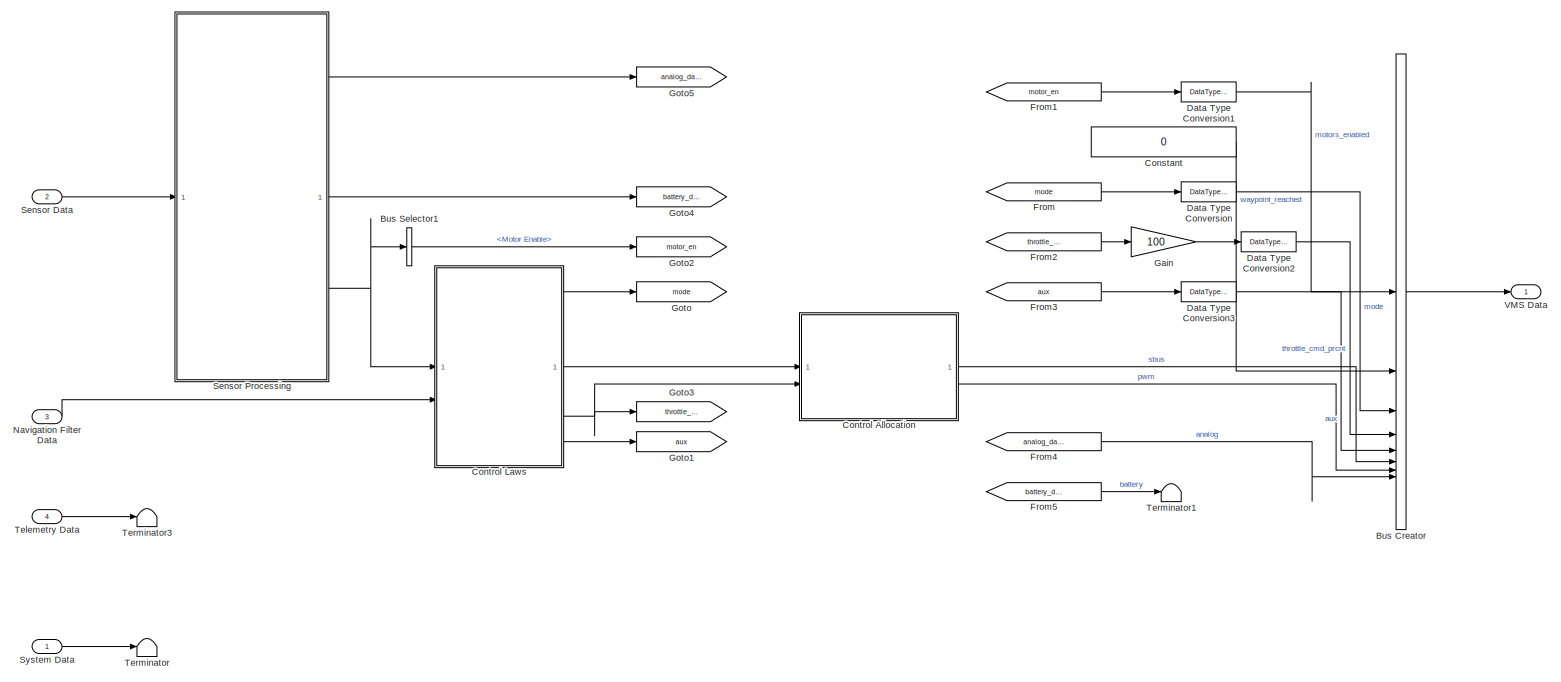
[diagram: root canvas - part 1/1, most of the canvas]
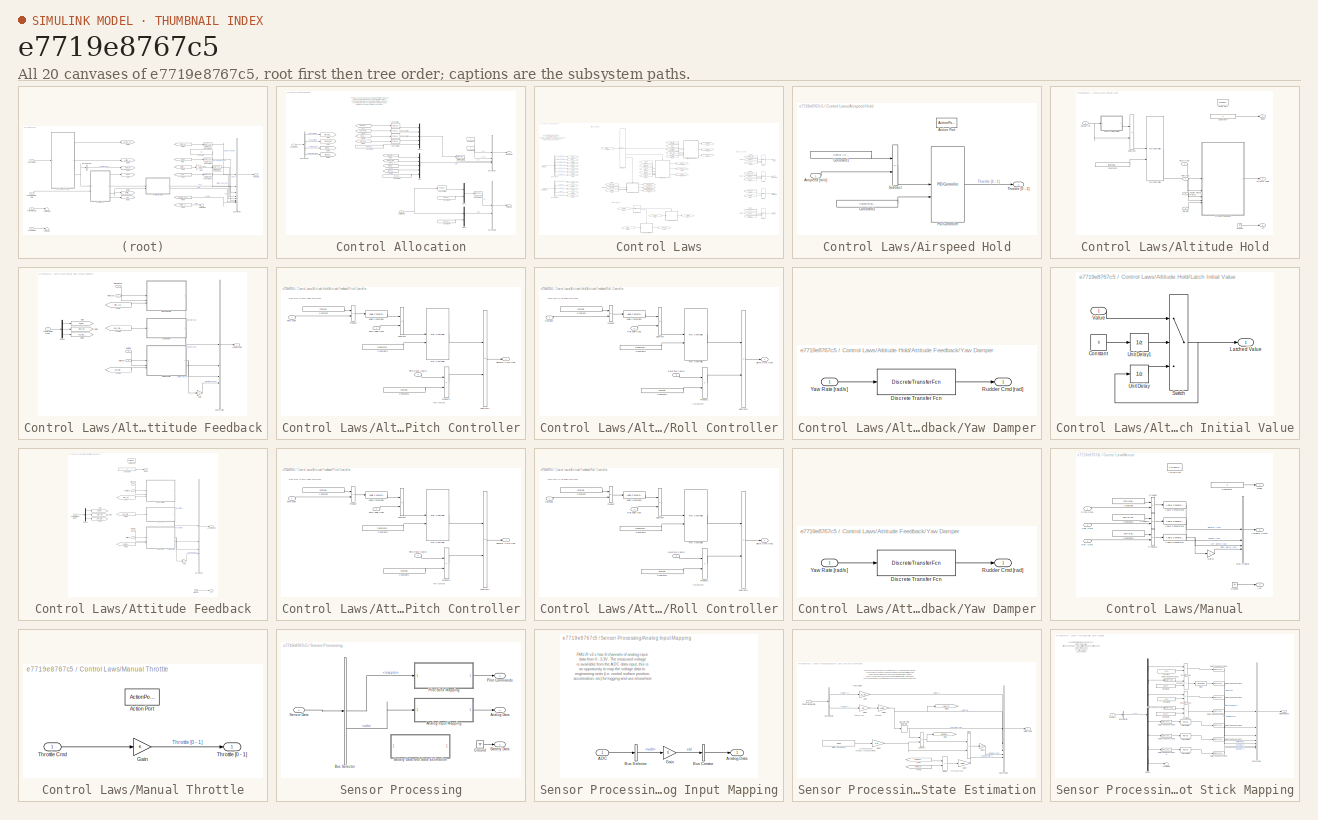
[diagram: thumbnail index - all 20 canvases of the model, root first then tree order]
MODEL slx_e7719e8767c5
KIND model
CONFIG AbsTol = auto
CONFIG EnableMultiTasking = off
CONFIG FixedStep = 1/100
CONFIG MaxStep = auto
CONFIG MinStep = auto
CONFIG RelTol = 1e-3
CONFIG SampleTimeConstraint = Unconstrained
CONFIG SolverName = FixedStepAuto
CONFIG StartTime = 0.0
CONFIG StopTime = 10.0
BLOCK [BusCreator] Bus Creator
  DisplayOption = bar
  InheritFromInputs = on
  Inputs = 8
BLOCK [BusSelector] Bus Selector1
  OutputSignals = Motor Enable
BLOCK [Constant] Constant
  OutDataTypeStr = boolean
  Value = 0
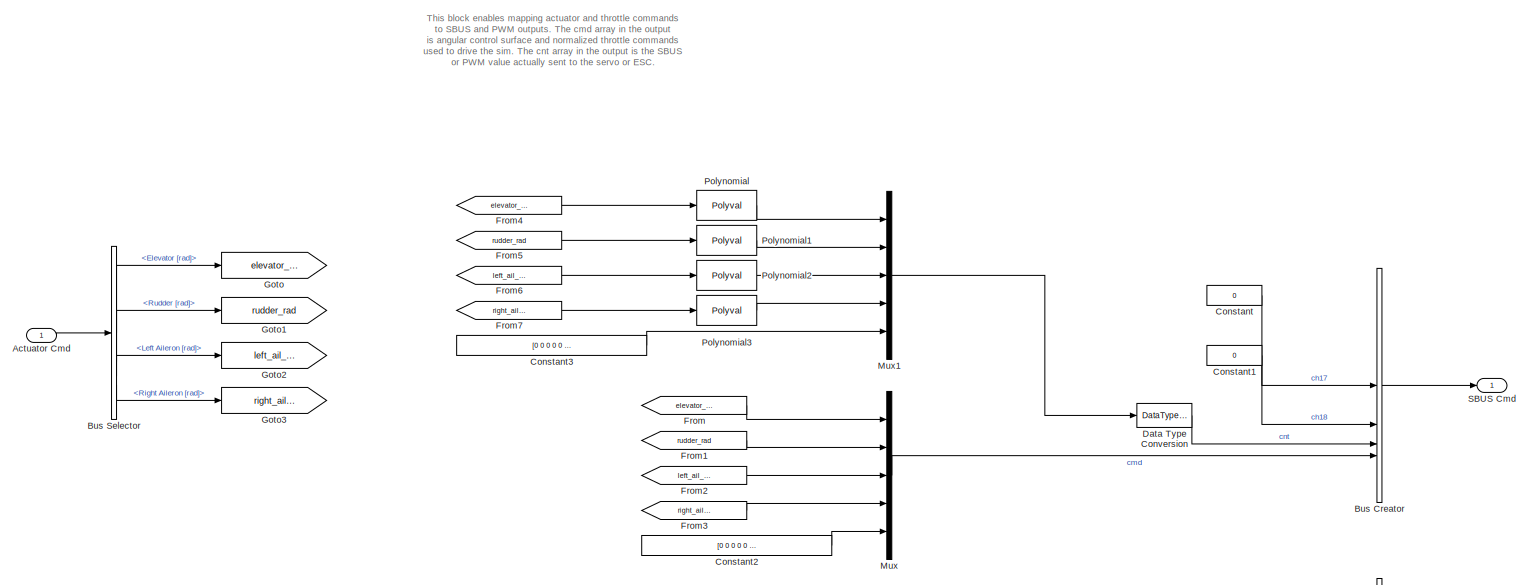
[diagram: Control Allocation - part 1/2, full width, top band]
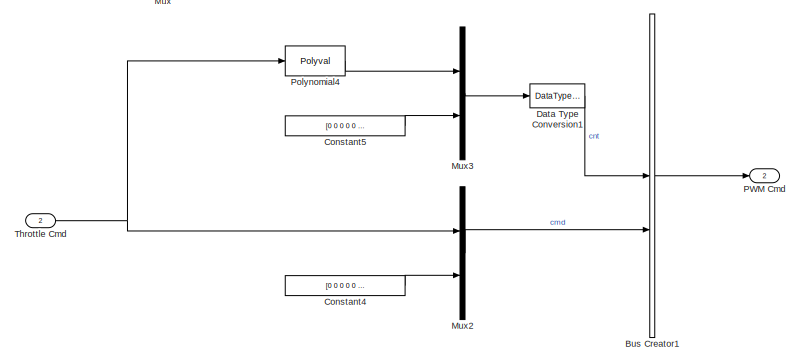
[diagram: Control Allocation - part 2/2, bottom right region]
BLOCK [SubSystem] Control Allocation
BLOCK [Inport] Control Allocation/Actuator Cmd
BLOCK [BusCreator] Control Allocation/Bus Creator
  DisplayOption = bar
  InheritFromInputs = on
  Inputs = 4
BLOCK [BusCreator] Control Allocation/Bus Creator1
  DisplayOption = bar
  InheritFromInputs = on
  Inputs = 2
BLOCK [BusSelector] Control Allocation/Bus Selector
  OutputSignals = Elevator [rad],Rudder [rad],Left Aileron [rad],Right Aileron [rad]
BLOCK [Constant] Control Allocation/Constant
  OutDataTypeStr = boolean
  Value = 0
BLOCK [Constant] Control Allocation/Constant1
  OutDataTypeStr = boolean
  Value = 0
BLOCK [Constant] Control Allocation/Constant2
  OutDataTypeStr = single
  Value = [0 0 0 0 0 0 0 0 0 0 0 0]
BLOCK [Constant] Control Allocation/Constant3
  OutDataTypeStr = single
  Value = [0 0 0 0 0 0 0 0 0 0 0 0]
BLOCK [Constant] Control Allocation/Constant4
  OutDataTypeStr = single
  Value = [0 0 0 0 0 0 0]
BLOCK [Constant] Control Allocation/Constant5
  OutDataTypeStr = single
  Value = [0 0 0 0 0 0 0]
BLOCK [DataTypeConversion] Control Allocation/Data Type Conversion
  OutDataTypeStr = int16
  RndMeth = Floor
  SaturateOnIntegerOverflow = off
BLOCK [DataTypeConversion] Control Allocation/Data Type Conversion1
  OutDataTypeStr = int16
  RndMeth = Floor
  SaturateOnIntegerOverflow = off
BLOCK [From] Control Allocation/From
  GotoTag = elevator_rad
BLOCK [From] Control Allocation/From1
  GotoTag = rudder_rad
BLOCK [From] Control Allocation/From2
  GotoTag = left_ail_rad
BLOCK [From] Control Allocation/From3
  GotoTag = right_ail_rad
BLOCK [From] Control Allocation/From4
  GotoTag = elevator_rad
BLOCK [From] Control Allocation/From5
  GotoTag = rudder_rad
BLOCK [From] Control Allocation/From6
  GotoTag = left_ail_rad
BLOCK [From] Control Allocation/From7
  GotoTag = right_ail_rad
BLOCK [Goto] Control Allocation/Goto
  GotoTag = elevator_rad
BLOCK [Goto] Control Allocation/Goto1
  GotoTag = rudder_rad
BLOCK [Goto] Control Allocation/Goto2
  GotoTag = left_ail_rad
BLOCK [Goto] Control Allocation/Goto3
  GotoTag = right_ail_rad
BLOCK [Mux] Control Allocation/Mux
  DisplayOption = bar
  Inputs = 5
BLOCK [Mux] Control Allocation/Mux1
  DisplayOption = bar
  Inputs = 5
BLOCK [Mux] Control Allocation/Mux2
  DisplayOption = bar
  Inputs = 2
BLOCK [Mux] Control Allocation/Mux3
  DisplayOption = bar
  Inputs = 2
BLOCK [Outport] Control Allocation/PWM Cmd
  Port = 2
BLOCK [Polyval] Control Allocation/Polynomial
  Coefs = [1144.32190165984, 167.225360182927, 1558.74885501875, 1026.6382652891]
BLOCK [Polyval] Control Allocation/Polynomial1
  Coefs = [-930.322085258545, 148.612787752928, -1476.11502090935, 1006.01614399429]
BLOCK [Polyval] Control Allocation/Polynomial2
  Coefs = [1097.27825386315, 173.191562145482, 1642.60230905023, 1054.30469578325]
BLOCK [Polyval] Control Allocation/Polynomial3
  Coefs = [930.582953971947, 132.665450728095, 1620.14796233637, 1011.10438715363]
BLOCK [Polyval] Control Allocation/Polynomial4
  Coefs = [1000, 1000]
BLOCK [Outport] Control Allocation/SBUS Cmd
BLOCK [Inport] Control Allocation/Throttle Cmd
  Port = 2
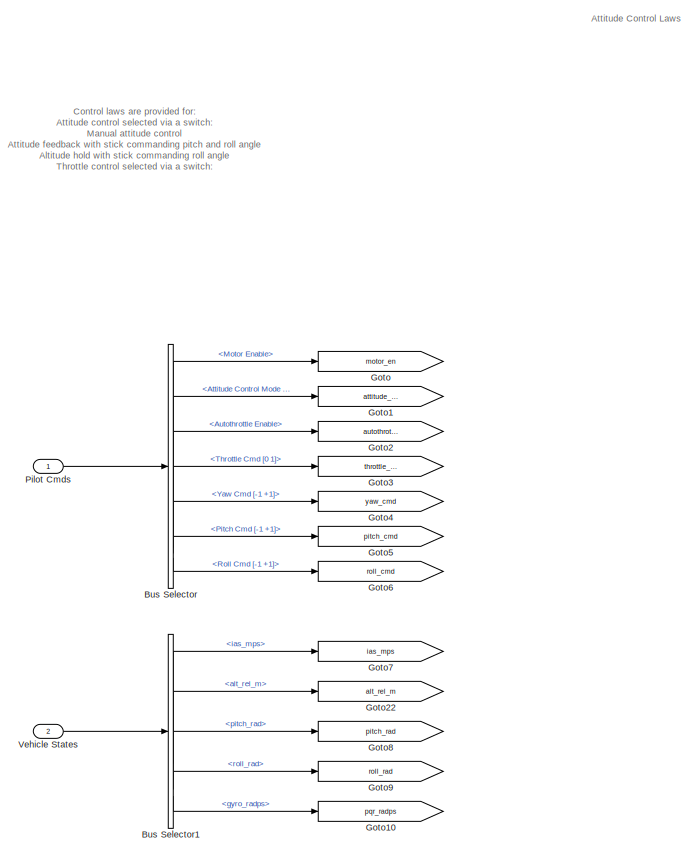
[diagram: Control Laws - part 1/4, middle left region]
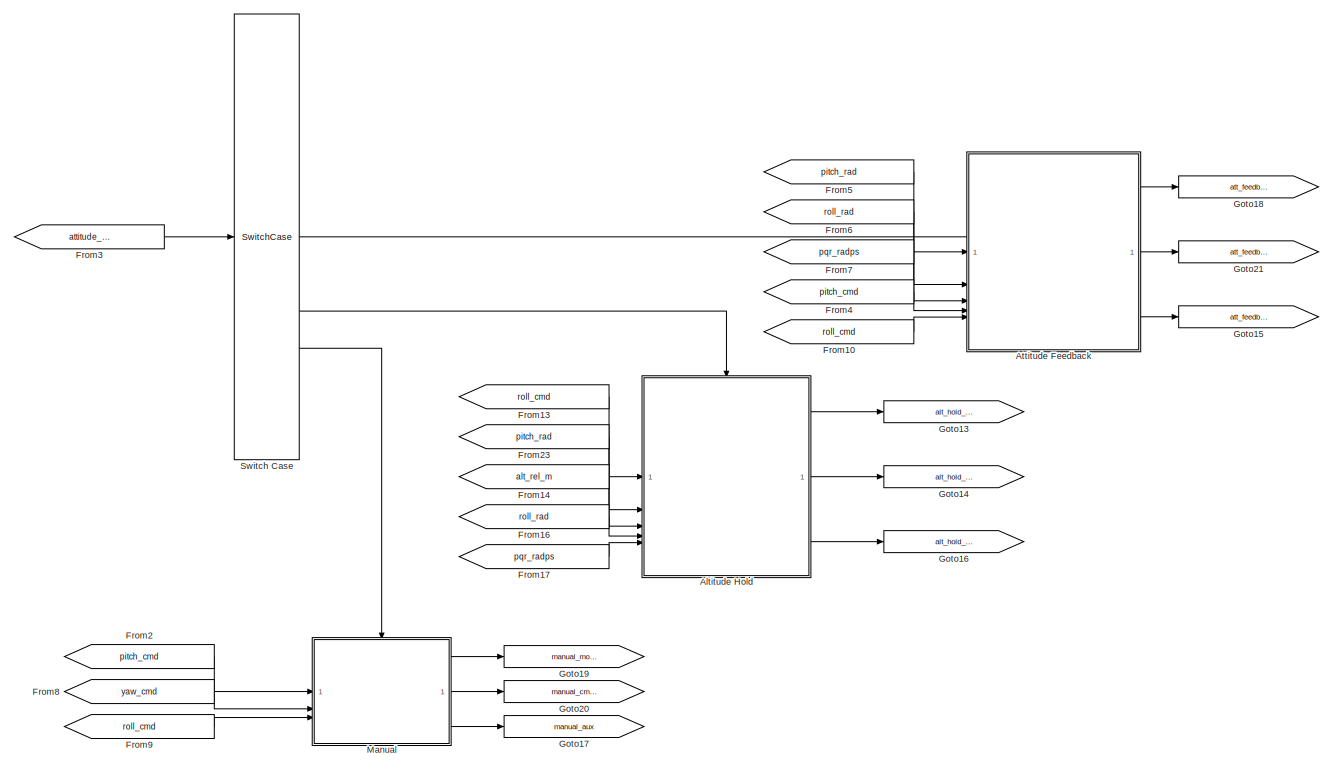
[diagram: Control Laws - part 2/4, central region]
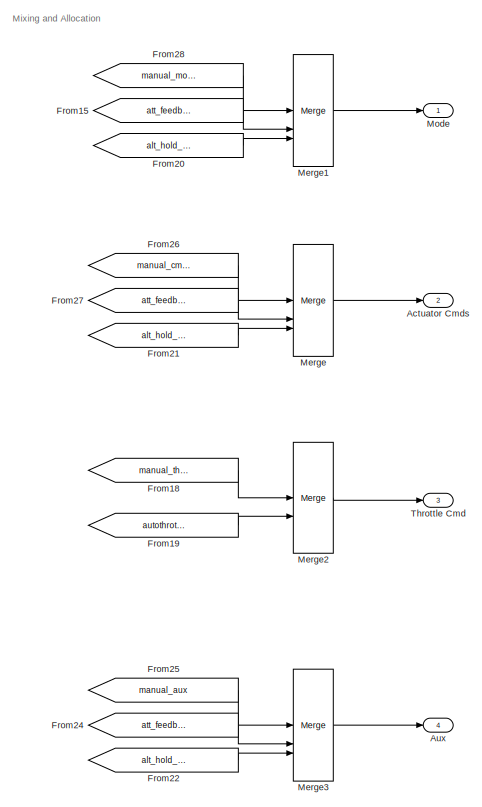
[diagram: Control Laws - part 3/4, middle right region]
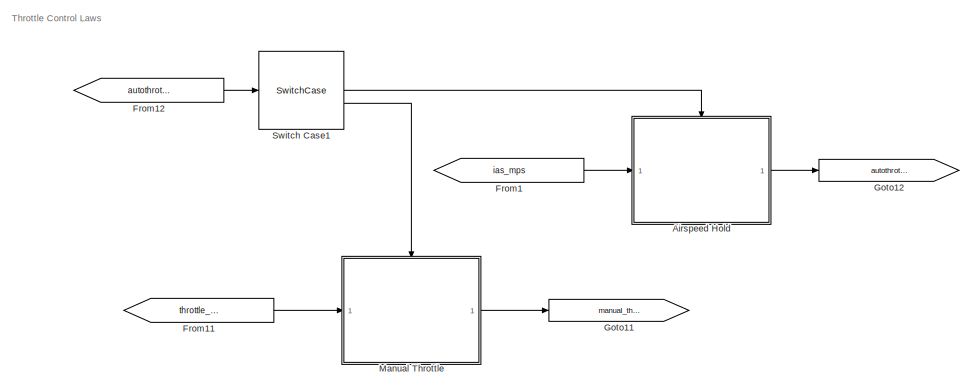
[diagram: Control Laws - part 4/4, bottom center region]
BLOCK [SubSystem] Control Laws
BLOCK [Outport] Control Laws/Actuator Cmds
  Port = 2
BLOCK [SubSystem] Control Laws/Airspeed Hold
  TreatAsAtomicUnit = on
BLOCK [ActionPort] Control Laws/Airspeed Hold/Action Port
  ActionPortLabel = case [ 1 ]:
  InitializeStates = reset
BLOCK [Inport] Control Laws/Airspeed Hold/Airspeed [m//s]
BLOCK [Constant] Control Laws/Airspeed Hold/Constant1
  OutDataTypeStr = single
  Value = Control.Airspeed.ref_mps
BLOCK [Constant] Control Laws/Airspeed Hold/Constant2
  OutDataTypeStr = single
  Value = framePeriod_s
BLOCK [Reference] Control Laws/Airspeed Hold/PID Controller  REF=slpidlib/PID Controller
  SourceBlock = slpidlib/PID Controller
  SourceType = PID 1dof
BLOCK [Sum] Control Laws/Airspeed Hold/Subtract
  AccumDataTypeStr = single
  IconShape = rectangular
  Inputs = +-
BLOCK [Outport] Control Laws/Airspeed Hold/Throttle [0 - 1]
BLOCK [SubSystem] Control Laws/Altitude Hold
  TreatAsAtomicUnit = on
BLOCK [ActionPort] Control Laws/Altitude Hold/Action Port
  ActionPortLabel = case [ 2 ]:
  InitializeStates = reset
BLOCK [Outport] Control Laws/Altitude Hold/Actuator Cmds
  Port = 2
BLOCK [Inport] Control Laws/Altitude Hold/Altitude [m]
  Port = 3
BLOCK [Inport] Control Laws/Altitude Hold/Angular Rates [rad//s]
  Port = 5
BLOCK [SubSystem] Control Laws/Altitude Hold/Attitude Feedback
  TreatAsAtomicUnit = on
BLOCK [Outport] Control Laws/Altitude Hold/Attitude Feedback/Actuator Cmds
BLOCK [Inport] Control Laws/Altitude Hold/Attitude Feedback/Angular Rates [rad//s]
  Port = 4
BLOCK [BusCreator] Control Laws/Altitude Hold/Attitude Feedback/Bus Creator
  DisplayOption = bar
  InheritFromInputs = on
  Inputs = 4
BLOCK [Demux] Control Laws/Altitude Hold/Attitude Feedback/Demux
  Outputs = 3
BLOCK [From] Control Laws/Altitude Hold/Attitude Feedback/From
  GotoTag = pitch_rate_radps
BLOCK [From] Control Laws/Altitude Hold/Attitude Feedback/From2
  GotoTag = roll_rate_radps
BLOCK [From] Control Laws/Altitude Hold/Attitude Feedback/From4
  GotoTag = yaw_rate_radps
BLOCK [Gain] Control Laws/Altitude Hold/Attitude Feedback/Gain
BLOCK [Goto] Control Laws/Altitude Hold/Attitude Feedback/Goto
  GotoTag = roll_rate_radps
BLOCK [Goto] Control Laws/Altitude Hold/Attitude Feedback/Goto1
  GotoTag = pitch_rate_radps
BLOCK [Goto] Control Laws/Altitude Hold/Attitude Feedback/Goto2
  GotoTag = yaw_rate_radps
BLOCK [SubSystem] Control Laws/Altitude Hold/Attitude Feedback/Pitch Controller
BLOCK [Reference] Control Laws/Altitude Hold/Attitude Feedback/Pitch Controller/Angle Conversion  REF=aerolibconvert2/Angle Conversion
  SourceBlock = aerolibconvert2/Angle Conversion
  SourceType = Angle Conversion
BLOCK [Constant] Control Laws/Altitude Hold/Attitude Feedback/Pitch Controller/Constant
  OutDataTypeStr = single
  Value = Control.Attitude.Pitch.ref_deg
BLOCK [Constant] Control Laws/Altitude Hold/Attitude Feedback/Pitch Controller/Constant1
  OutDataTypeStr = single
  Value = Control.Attitude.Pitch.d
BLOCK [Constant] Control Laws/Altitude Hold/Attitude Feedback/Pitch Controller/Constant2
  OutDataTypeStr = single
  Value = framePeriod_s
BLOCK [Outport] Control Laws/Altitude Hold/Attitude Feedback/Pitch Controller/Elevator Cmd [rad]
BLOCK [Reference] Control Laws/Altitude Hold/Attitude Feedback/Pitch Controller/PID Controller  REF=slpidlib/PID Controller
  SourceBlock = slpidlib/PID Controller
  SourceType = PID 1dof
BLOCK [Inport] Control Laws/Altitude Hold/Attitude Feedback/Pitch Controller/Pitch Angle [rad]
  Port = 2
BLOCK [Inport] Control Laws/Altitude Hold/Attitude Feedback/Pitch Controller/Pitch Rate [rad//s]
  Port = 3
BLOCK [Inport] Control Laws/Altitude Hold/Attitude Feedback/Pitch Controller/Pitch Stick
BLOCK [Product] Control Laws/Altitude Hold/Attitude Feedback/Pitch Controller/Product
  OutDataTypeStr = single
BLOCK [Product] Control Laws/Altitude Hold/Attitude Feedback/Pitch Controller/Product1
BLOCK [Sum] Control Laws/Altitude Hold/Attitude Feedback/Pitch Controller/Subtract
  IconShape = rectangular
  Inputs = +-
BLOCK [Sum] Control Laws/Altitude Hold/Attitude Feedback/Pitch Controller/Subtract1
  IconShape = rectangular
  Inputs = +-
BLOCK [Inport] Control Laws/Altitude Hold/Attitude Feedback/Pitch Ref [rad]
BLOCK [Inport] Control Laws/Altitude Hold/Attitude Feedback/Pitch [rad]
  Port = 2
BLOCK [Inport] Control Laws/Altitude Hold/Attitude Feedback/Roll Cmd
  Port = 5
BLOCK [SubSystem] Control Laws/Altitude Hold/Attitude Feedback/Roll Controller
BLOCK [Outport] Control Laws/Altitude Hold/Attitude Feedback/Roll Controller/Aileron Cmd [rad]
BLOCK [Reference] Control Laws/Altitude Hold/Attitude Feedback/Roll Controller/Angle Conversion  REF=aerolibconvert2/Angle Conversion
  SourceBlock = aerolibconvert2/Angle Conversion
  SourceType = Angle Conversion
BLOCK [Constant] Control Laws/Altitude Hold/Attitude Feedback/Roll Controller/Constant
  OutDataTypeStr = single
  Value = Control.Attitude.Roll.ref_deg
BLOCK [Constant] Control Laws/Altitude Hold/Attitude Feedback/Roll Controller/Constant1
  OutDataTypeStr = single
  Value = Control.Attitude.Roll.d
BLOCK [Constant] Control Laws/Altitude Hold/Attitude Feedback/Roll Controller/Constant2
  OutDataTypeStr = single
  Value = framePeriod_s
BLOCK [Reference] Control Laws/Altitude Hold/Attitude Feedback/Roll Controller/PID Controller  REF=slpidlib/PID Controller
  SourceBlock = slpidlib/PID Controller
  SourceType = PID 1dof
BLOCK [Product] Control Laws/Altitude Hold/Attitude Feedback/Roll Controller/Product
  OutDataTypeStr = single
BLOCK [Product] Control Laws/Altitude Hold/Attitude Feedback/Roll Controller/Product1
BLOCK [Inport] Control Laws/Altitude Hold/Attitude Feedback/Roll Controller/Roll Angle [rad]
  Port = 2
BLOCK [Inport] Control Laws/Altitude Hold/Attitude Feedback/Roll Controller/Roll Rate [rad//s]
  Port = 3
BLOCK [Inport] Control Laws/Altitude Hold/Attitude Feedback/Roll Controller/Roll Stick
BLOCK [Sum] Control Laws/Altitude Hold/Attitude Feedback/Roll Controller/Subtract
  IconShape = rectangular
  Inputs = +-
BLOCK [Sum] Control Laws/Altitude Hold/Attitude Feedback/Roll Controller/Subtract1
  IconShape = rectangular
  Inputs = +-
BLOCK [Inport] Control Laws/Altitude Hold/Attitude Feedback/Roll [rad]
  Port = 3
BLOCK [SubSystem] Control Laws/Altitude Hold/Attitude Feedback/Yaw Damper
BLOCK [DiscreteTransferFcn] Control Laws/Altitude Hold/Attitude Feedback/Yaw Damper/Discrete Transfer Fcn
  Denominator = [1 -0.9608]
  InputPortMap = u0
  Numerator = [-0.065 0.065]
BLOCK [Outport] Control Laws/Altitude Hold/Attitude Feedback/Yaw Damper/Rudder Cmd [rad]
BLOCK [Inport] Control Laws/Altitude Hold/Attitude Feedback/Yaw Damper/Yaw Rate [rad//s]
BLOCK [Outport] Control Laws/Altitude Hold/Aux
  Port = 3
BLOCK [Constant] Control Laws/Altitude Hold/Constant2
  OutDataTypeStr = single
  Value = framePeriod_s
BLOCK [Constant] Control Laws/Altitude Hold/Constant4
  OutDataTypeStr = int8
  Value = 2
BLOCK [Ground] Control Laws/Altitude Hold/Ground
BLOCK [SubSystem] Control Laws/Altitude Hold/Latch Initial Value
BLOCK [Constant] Control Laws/Altitude Hold/Latch Initial Value/Constant
  Value = 0
BLOCK [Outport] Control Laws/Altitude Hold/Latch Initial Value/Latched Value
BLOCK [Switch] Control Laws/Altitude Hold/Latch Initial Value/Switch
  Criteria = u2 > Threshold
  InputSameDT = off
  SaturateOnIntegerOverflow = off
BLOCK [UnitDelay] Control Laws/Altitude Hold/Latch Initial Value/Unit Delay
  HasFrameUpgradeWarning = on
  SampleTime = -1
BLOCK [UnitDelay] Control Laws/Altitude Hold/Latch Initial Value/Unit Delay1
  HasFrameUpgradeWarning = on
  InitialCondition = 1
  SampleTime = -1
BLOCK [Inport] Control Laws/Altitude Hold/Latch Initial Value/Value
BLOCK [Outport] Control Laws/Altitude Hold/Mode
BLOCK [Reference] Control Laws/Altitude Hold/PID Controller  REF=slpidlib/PID Controller
  SourceBlock = slpidlib/PID Controller
  SourceType = PID 1dof
BLOCK [Inport] Control Laws/Altitude Hold/Pitch [rad]
  Port = 2
BLOCK [Inport] Control Laws/Altitude Hold/Roll Cmd
BLOCK [Inport] Control Laws/Altitude Hold/Roll [rad]
  Port = 4
BLOCK [Sum] Control Laws/Altitude Hold/Subtract
  IconShape = rectangular
  Inputs = +-
BLOCK [SubSystem] Control Laws/Attitude Feedback
  TreatAsAtomicUnit = on
BLOCK [ActionPort] Control Laws/Attitude Feedback/Action Port
  ActionPortLabel = case [ 1 ]:
  InitializeStates = reset
BLOCK [Outport] Control Laws/Attitude Feedback/Actuator Cmds
  Port = 2
BLOCK [Inport] Control Laws/Attitude Feedback/Angular Rates [rad//s]
  Port = 3
BLOCK [Outport] Control Laws/Attitude Feedback/Aux
  Port = 3
BLOCK [BusCreator] Control Laws/Attitude Feedback/Bus Creator
  DisplayOption = bar
  InheritFromInputs = on
  Inputs = 4
BLOCK [Constant] Control Laws/Attitude Feedback/Constant4
  OutDataTypeStr = int8
  Value = 2
BLOCK [Demux] Control Laws/Attitude Feedback/Demux
  Outputs = 3
BLOCK [From] Control Laws/Attitude Feedback/From
  GotoTag = pitch_rate_radps
BLOCK [From] Control Laws/Attitude Feedback/From2
  GotoTag = roll_rate_radps
BLOCK [From] Control Laws/Attitude Feedback/From4
  GotoTag = yaw_rate_radps
BLOCK [Gain] Control Laws/Attitude Feedback/Gain
BLOCK [Goto] Control Laws/Attitude Feedback/Goto
  GotoTag = roll_rate_radps
BLOCK [Goto] Control Laws/Attitude Feedback/Goto1
  GotoTag = pitch_rate_radps
BLOCK [Goto] Control Laws/Attitude Feedback/Goto2
  GotoTag = yaw_rate_radps
BLOCK [Ground] Control Laws/Attitude Feedback/Ground
BLOCK [Outport] Control Laws/Attitude Feedback/Mode
BLOCK [Inport] Control Laws/Attitude Feedback/Pitch Cmd
  Port = 4
BLOCK [SubSystem] Control Laws/Attitude Feedback/Pitch Controller
BLOCK [Reference] Control Laws/Attitude Feedback/Pitch Controller/Angle Conversion  REF=aerolibconvert2/Angle Conversion
  SourceBlock = aerolibconvert2/Angle Conversion
  SourceType = Angle Conversion
BLOCK [Constant] Control Laws/Attitude Feedback/Pitch Controller/Constant
  OutDataTypeStr = single
  Value = Control.Attitude.Pitch.ref_deg
BLOCK [Constant] Control Laws/Attitude Feedback/Pitch Controller/Constant1
  OutDataTypeStr = single
  Value = Control.Attitude.Pitch.d
BLOCK [Constant] Control Laws/Attitude Feedback/Pitch Controller/Constant2
  OutDataTypeStr = single
  Value = framePeriod_s
BLOCK [Outport] Control Laws/Attitude Feedback/Pitch Controller/Elevator Cmd [rad]
BLOCK [Reference] Control Laws/Attitude Feedback/Pitch Controller/PID Controller  REF=slpidlib/PID Controller
  SourceBlock = slpidlib/PID Controller
  SourceType = PID 1dof
BLOCK [Inport] Control Laws/Attitude Feedback/Pitch Controller/Pitch Angle [rad]
  Port = 2
BLOCK [Inport] Control Laws/Attitude Feedback/Pitch Controller/Pitch Rate [rad//s]
  Port = 3
BLOCK [Inport] Control Laws/Attitude Feedback/Pitch Controller/Pitch Stick
BLOCK [Product] Control Laws/Attitude Feedback/Pitch Controller/Product
  OutDataTypeStr = single
BLOCK [Product] Control Laws/Attitude Feedback/Pitch Controller/Product1
BLOCK [Sum] Control Laws/Attitude Feedback/Pitch Controller/Subtract
  IconShape = rectangular
  Inputs = +-
BLOCK [Sum] Control Laws/Attitude Feedback/Pitch Controller/Subtract1
  IconShape = rectangular
  Inputs = +-
BLOCK [Inport] Control Laws/Attitude Feedback/Pitch [rad]
BLOCK [Inport] Control Laws/Attitude Feedback/Roll Cmd
  Port = 5
BLOCK [SubSystem] Control Laws/Attitude Feedback/Roll Controller
BLOCK [Outport] Control Laws/Attitude Feedback/Roll Controller/Aileron Cmd [rad]
BLOCK [Reference] Control Laws/Attitude Feedback/Roll Controller/Angle Conversion  REF=aerolibconvert2/Angle Conversion
  SourceBlock = aerolibconvert2/Angle Conversion
  SourceType = Angle Conversion
BLOCK [Constant] Control Laws/Attitude Feedback/Roll Controller/Constant
  OutDataTypeStr = single
  Value = Control.Attitude.Roll.ref_deg
BLOCK [Constant] Control Laws/Attitude Feedback/Roll Controller/Constant1
  OutDataTypeStr = single
  Value = Control.Attitude.Roll.d
BLOCK [Constant] Control Laws/Attitude Feedback/Roll Controller/Constant2
  OutDataTypeStr = single
  Value = framePeriod_s
BLOCK [Reference] Control Laws/Attitude Feedback/Roll Controller/PID Controller  REF=slpidlib/PID Controller
  SourceBlock = slpidlib/PID Controller
  SourceType = PID 1dof
BLOCK [Product] Control Laws/Attitude Feedback/Roll Controller/Product
  OutDataTypeStr = single
BLOCK [Product] Control Laws/Attitude Feedback/Roll Controller/Product1
BLOCK [Inport] Control Laws/Attitude Feedback/Roll Controller/Roll Angle [rad]
  Port = 2
BLOCK [Inport] Control Laws/Attitude Feedback/Roll Controller/Roll Rate [rad//s]
  Port = 3
BLOCK [Inport] Control Laws/Attitude Feedback/Roll Controller/Roll Stick
BLOCK [Sum] Control Laws/Attitude Feedback/Roll Controller/Subtract
  IconShape = rectangular
  Inputs = +-
BLOCK [Sum] Control Laws/Attitude Feedback/Roll Controller/Subtract1
  IconShape = rectangular
  Inputs = +-
BLOCK [Inport] Control Laws/Attitude Feedback/Roll [rad]
  Port = 2
BLOCK [SubSystem] Control Laws/Attitude Feedback/Yaw Damper
BLOCK [DiscreteTransferFcn] Control Laws/Attitude Feedback/Yaw Damper/Discrete Transfer Fcn
  Denominator = [1 -0.9608]
  InputPortMap = u0
  Numerator = [-0.065 0.065]
BLOCK [Outport] Control Laws/Attitude Feedback/Yaw Damper/Rudder Cmd [rad]
BLOCK [Inport] Control Laws/Attitude Feedback/Yaw Damper/Yaw Rate [rad//s]
BLOCK [Outport] Control Laws/Aux
  Port = 4
BLOCK [BusSelector] Control Laws/Bus Selector
  OutputSignals = Motor Enable,Attitude Control Mode [0 1 2],Autothrottle Enable,Throttle Cmd [0 1],Yaw Cmd [-1 +1],Pitch Cmd [-1 +1],Roll Cmd [-1 +1]
BLOCK [BusSelector] Control Laws/Bus Selector1
  OutputSignals = ias_mps,alt_rel_m,pitch_rad,roll_rad,gyro_radps
BLOCK [From] Control Laws/From1
  GotoTag = ias_mps
BLOCK [From] Control Laws/From10
  GotoTag = roll_cmd
BLOCK [From] Control Laws/From11
  GotoTag = throttle_cmd
BLOCK [From] Control Laws/From12
  GotoTag = autothrottle_en
BLOCK [From] Control Laws/From13
  GotoTag = roll_cmd
BLOCK [From] Control Laws/From14
  GotoTag = alt_rel_m
BLOCK [From] Control Laws/From15
  GotoTag = att_feedback_mode
BLOCK [From] Control Laws/From16
  GotoTag = roll_rad
BLOCK [From] Control Laws/From17
  GotoTag = pqr_radps
BLOCK [From] Control Laws/From18
  GotoTag = manual_throttle
BLOCK [From] Control Laws/From19
  GotoTag = autothrottle
BLOCK [From] Control Laws/From2
  GotoTag = pitch_cmd
BLOCK [From] Control Laws/From20
  GotoTag = alt_hold_mode
BLOCK [From] Control Laws/From21
  GotoTag = alt_hold_cmds
BLOCK [From] Control Laws/From22
  GotoTag = alt_hold_aux
BLOCK [From] Control Laws/From23
  GotoTag = pitch_rad
BLOCK [From] Control Laws/From24
  GotoTag = att_feedback_aux
BLOCK [From] Control Laws/From25
  GotoTag = manual_aux
BLOCK [From] Control Laws/From26
  GotoTag = manual_cmds
BLOCK [From] Control Laws/From27
  GotoTag = att_feedback_cmds
BLOCK [From] Control Laws/From28
  GotoTag = manual_mode
BLOCK [From] Control Laws/From3
  GotoTag = attitude_mode
BLOCK [From] Control Laws/From4
  GotoTag = pitch_cmd
BLOCK [From] Control Laws/From5
  GotoTag = pitch_rad
BLOCK [From] Control Laws/From6
  GotoTag = roll_rad
BLOCK [From] Control Laws/From7
  GotoTag = pqr_radps
BLOCK [From] Control Laws/From8
  GotoTag = yaw_cmd
BLOCK [From] Control Laws/From9
  GotoTag = roll_cmd
BLOCK [Goto] Control Laws/Goto
  GotoTag = motor_en
BLOCK [Goto] Control Laws/Goto1
  GotoTag = attitude_mode
BLOCK [Goto] Control Laws/Goto10
  GotoTag = pqr_radps
BLOCK [Goto] Control Laws/Goto11
  GotoTag = manual_throttle
BLOCK [Goto] Control Laws/Goto12
  GotoTag = autothrottle
BLOCK [Goto] Control Laws/Goto13
  GotoTag = alt_hold_mode
BLOCK [Goto] Control Laws/Goto14
  GotoTag = alt_hold_cmds
BLOCK [Goto] Control Laws/Goto15
  GotoTag = att_feedback_aux
BLOCK [Goto] Control Laws/Goto16
  GotoTag = alt_hold_aux
BLOCK [Goto] Control Laws/Goto17
  GotoTag = manual_aux
BLOCK [Goto] Control Laws/Goto18
  GotoTag = att_feedback_mode
BLOCK [Goto] Control Laws/Goto19
  GotoTag = manual_mode
BLOCK [Goto] Control Laws/Goto2
  GotoTag = autothrottle_en
BLOCK [Goto] Control Laws/Goto20
  GotoTag = manual_cmds
BLOCK [Goto] Control Laws/Goto21
  GotoTag = att_feedback_cmds
BLOCK [Goto] Control Laws/Goto22
  GotoTag = alt_rel_m
BLOCK [Goto] Control Laws/Goto3
  GotoTag = throttle_cmd
BLOCK [Goto] Control Laws/Goto4
  GotoTag = yaw_cmd
BLOCK [Goto] Control Laws/Goto5
  GotoTag = pitch_cmd
BLOCK [Goto] Control Laws/Goto6
  GotoTag = roll_cmd
BLOCK [Goto] Control Laws/Goto7
  GotoTag = ias_mps
BLOCK [Goto] Control Laws/Goto8
  GotoTag = pitch_rad
BLOCK [Goto] Control Laws/Goto9
  GotoTag = roll_rad
BLOCK [SubSystem] Control Laws/Manual
  TreatAsAtomicUnit = on
BLOCK [SubSystem] Control Laws/Manual Throttle
  TreatAsAtomicUnit = on
BLOCK [ActionPort] Control Laws/Manual Throttle/Action Port
  ActionPortLabel = default:
  InitializeStates = reset
BLOCK [Gain] Control Laws/Manual Throttle/Gain
  OutDataTypeStr = single
BLOCK [Inport] Control Laws/Manual Throttle/Throttle Cmd
BLOCK [Outport] Control Laws/Manual Throttle/Throttle [0 - 1]
BLOCK [ActionPort] Control Laws/Manual/Action Port
  ActionPortLabel = default:
  InitializeStates = reset
BLOCK [Outport] Control Laws/Manual/Actuator Cmds
  Port = 2
BLOCK [Reference] Control Laws/Manual/Angle Conversion  REF=aerolibconvert2/Angle Conversion
  SourceBlock = aerolibconvert2/Angle Conversion
  SourceType = Angle Conversion
BLOCK [Reference] Control Laws/Manual/Angle Conversion1  REF=aerolibconvert2/Angle Conversion
  SourceBlock = aerolibconvert2/Angle Conversion
  SourceType = Angle Conversion
BLOCK [Reference] Control Laws/Manual/Angle Conversion2  REF=aerolibconvert2/Angle Conversion
  SourceBlock = aerolibconvert2/Angle Conversion
  SourceType = Angle Conversion
BLOCK [Outport] Control Laws/Manual/Aux
  Port = 3
BLOCK [BusCreator] Control Laws/Manual/Bus Creator
  DisplayOption = bar
  InheritFromInputs = on
  Inputs = 4
BLOCK [Constant] Control Laws/Manual/Constant
  OutDataTypeStr = single
  Value = Control.elev_lim_deg
BLOCK [Constant] Control Laws/Manual/Constant1
  OutDataTypeStr = single
  Value = Control.rud_lim_deg
BLOCK [Constant] Control Laws/Manual/Constant2
  OutDataTypeStr = single
  Value = Control.ail_lim_deg
BLOCK [Constant] Control Laws/Manual/Constant3
  OutDataTypeStr = int8
  Value = 0
BLOCK [Gain] Control Laws/Manual/Gain1
  OutDataTypeStr = single
BLOCK [Ground] Control Laws/Manual/Ground
BLOCK [Outport] Control Laws/Manual/Mode
BLOCK [Inport] Control Laws/Manual/Pitch Cmd
BLOCK [Product] Control Laws/Manual/Product
  OutDataTypeStr = single
BLOCK [Product] Control Laws/Manual/Product1
  OutDataTypeStr = single
BLOCK [Product] Control Laws/Manual/Product2
  OutDataTypeStr = single
BLOCK [Inport] Control Laws/Manual/Roll Cmd
  Port = 3
BLOCK [Inport] Control Laws/Manual/Yaw Cmd
  Port = 2
BLOCK [Merge] Control Laws/Merge
  Inputs = 3
BLOCK [Merge] Control Laws/Merge1
  Inputs = 3
BLOCK [Merge] Control Laws/Merge2
BLOCK [Merge] Control Laws/Merge3
  Inputs = 3
BLOCK [Outport] Control Laws/Mode
BLOCK [Inport] Control Laws/Pilot Cmds
BLOCK [SwitchCase] Control Laws/Switch Case
  CaseConditions = {1, 2}
BLOCK [SwitchCase] Control Laws/Switch Case1
BLOCK [Outport] Control Laws/Throttle Cmd
  Port = 3
BLOCK [Inport] Control Laws/Vehicle States
  Port = 2
BLOCK [DataTypeConversion] Data Type Conversion
  OutDataTypeStr = int8
  RndMeth = Floor
  SaturateOnIntegerOverflow = off
BLOCK [DataTypeConversion] Data Type Conversion1
  OutDataTypeStr = boolean
  RndMeth = Floor
  SaturateOnIntegerOverflow = off
BLOCK [DataTypeConversion] Data Type Conversion2
  OutDataTypeStr = single
  RndMeth = Floor
  SaturateOnIntegerOverflow = off
BLOCK [DataTypeConversion] Data Type Conversion3
  OutDataTypeStr = single
  RndMeth = Floor
  SaturateOnIntegerOverflow = off
BLOCK [From] From
  GotoTag = mode
BLOCK [From] From1
  GotoTag = motor_en
BLOCK [From] From2
  GotoTag = throttle_cmd
BLOCK [From] From3
  GotoTag = aux
BLOCK [From] From4
  GotoTag = analog_data
BLOCK [From] From5
  GotoTag = battery_data
BLOCK [Gain] Gain
  Gain = 100
  OutDataTypeStr = single
BLOCK [Goto] Goto
  GotoTag = mode
BLOCK [Goto] Goto1
  GotoTag = aux
BLOCK [Goto] Goto2
  GotoTag = motor_en
BLOCK [Goto] Goto3
  GotoTag = throttle_cmd
BLOCK [Goto] Goto4
  GotoTag = battery_data
BLOCK [Goto] Goto5
  GotoTag = analog_data
BLOCK [Inport] Navigation Filter Data
  BusOutputAsStruct = on
  OutDataTypeStr = Bus: NavData
  Port = 3
  SampleTime = framePeriod_s
BLOCK [Inport] Sensor Data
  BusOutputAsStruct = on
  OutDataTypeStr = Bus: SensorData
  Port = 2
  SampleTime = framePeriod_s
BLOCK [SubSystem] Sensor Processing
BLOCK [Outport] Sensor Processing/Analog Data
BLOCK [SubSystem] Sensor Processing/Analog Input Mapping
BLOCK [Inport] Sensor Processing/Analog Input Mapping/ADC
BLOCK [Outport] Sensor Processing/Analog Input Mapping/Analog Data
BLOCK [BusCreator] Sensor Processing/Analog Input Mapping/Bus Creator
  DisplayOption = bar
  InheritFromInputs = on
  Inputs = 1
  OutDataTypeStr = Bus: AnalogData
BLOCK [BusSelector] Sensor Processing/Analog Input Mapping/Bus Selector
  OutputSignals = volt
BLOCK [Gain] Sensor Processing/Analog Input Mapping/Gain
  Gain = 0
BLOCK [Outport] Sensor Processing/Battery Data
  Port = 2
BLOCK [SubSystem] Sensor Processing/Battery Data and State Estimation
  Commented = on
BLOCK [Constant] Sensor Processing/Battery Data and State Estimation/Battery Capacity mAh
  OutDataTypeStr = single
  Value = 5000
BLOCK [Outport] Sensor Processing/Battery Data and State Estimation/Battery Data
BLOCK [BusCreator] Sensor Processing/Battery Data and State Estimation/Bus Creator
  DisplayOption = bar
  InheritFromInputs = on
  Inputs = 5
  OutDataTypeStr = Bus: BatteryData
BLOCK [BusSelector] Sensor Processing/Battery Data and State Estimation/Bus Selector
  OutputSignals = voltage_v,current_v
BLOCK [DiscreteIntegrator] Sensor Processing/Battery Data and State Estimation/Discrete-Time Integrator
  ICPrevOutput = DiscIntNeverNeededParam
  ICPrevScaledInput = DiscIntNeverNeededParam
  InitialConditionSetting = Auto
  SampleTime = framePeriod_s
BLOCK [Product] Sensor Processing/Battery Data and State Estimation/Divide
  Inputs = */
BLOCK [Product] Sensor Processing/Battery Data and State Estimation/Divide1
  Inputs = */
BLOCK [From] Sensor Processing/Battery Data and State Estimation/From
  GotoTag = remaining_mah
BLOCK [From] Sensor Processing/Battery Data and State Estimation/From1
  GotoTag = current_mah
BLOCK [Gain] Sensor Processing/Battery Data and State Estimation/Gain
  Gain = 15.30
BLOCK [Gain] Sensor Processing/Battery Data and State Estimation/Gain1
  Gain = 50
BLOCK [Gain] Sensor Processing/Battery Data and State Estimation/Gain2
  Gain = 1000
BLOCK [Gain] Sensor Processing/Battery Data and State Estimation/Gain3
  Gain = 100
BLOCK [Gain] Sensor Processing/Battery Data and State Estimation/Gain4
  Gain = 3600
BLOCK [Gain] Sensor Processing/Battery Data and State Estimation/Gain5
  Gain = 0.8
BLOCK [Goto] Sensor Processing/Battery Data and State Estimation/Goto
  GotoTag = remaining_mah
BLOCK [Goto] Sensor Processing/Battery Data and State Estimation/Goto1
  GotoTag = current_mah
BLOCK [Inport] Sensor Processing/Battery Data and State Estimation/Power Module Data
BLOCK [Sum] Sensor Processing/Battery Data and State Estimation/Subtract
  IconShape = rectangular
  Inputs = -+
BLOCK [BusSelector] Sensor Processing/Bus Selector
  OutputSignals = inceptor,adc
BLOCK [Ground] Sensor Processing/Ground
BLOCK [Outport] Sensor Processing/Pilot Commands
  Port = 3
BLOCK [SubSystem] Sensor Processing/Pilot Stick Mapping
BLOCK [BusCreator] Sensor Processing/Pilot Stick Mapping/Bus Creator
  DisplayOption = bar
  InheritFromInputs = on
  Inputs = 7
BLOCK [BusSelector] Sensor Processing/Pilot Stick Mapping/Bus Selector
  OutputSignals = ch
BLOCK [Constant] Sensor Processing/Pilot Stick Mapping/Constant
  Value = 1024
BLOCK [Constant] Sensor Processing/Pilot Stick Mapping/Constant1
  OutDataTypeStr = single
  Value = 2 / 2047
BLOCK [Constant] Sensor Processing/Pilot Stick Mapping/Constant2
  OutDataTypeStr = int16
  Value = 1024
BLOCK [Constant] Sensor Processing/Pilot Stick Mapping/Constant3
  OutDataTypeStr = single
  Value = 1 / 2047
BLOCK [DataTypeConversion] Sensor Processing/Pilot Stick Mapping/Data Type Conversion1
  OutDataTypeStr = int8
  RndMeth = Floor
  SaturateOnIntegerOverflow = off
BLOCK [DataTypeConversion] Sensor Processing/Pilot Stick Mapping/Data Type Conversion10
  OutDataTypeStr = single
  RndMeth = Floor
  SaturateOnIntegerOverflow = off
BLOCK [DataTypeConversion] Sensor Processing/Pilot Stick Mapping/Data Type Conversion11
  OutDataTypeStr = single
  RndMeth = Floor
  SaturateOnIntegerOverflow = off
BLOCK [DataTypeConversion] Sensor Processing/Pilot Stick Mapping/Data Type Conversion12
  OutDataTypeStr = single
  RndMeth = Floor
  SaturateOnIntegerOverflow = off
BLOCK [DataTypeConversion] Sensor Processing/Pilot Stick Mapping/Data Type Conversion2
  OutDataTypeStr = boolean
  RndMeth = Floor
  SaturateOnIntegerOverflow = off
BLOCK [DataTypeConversion] Sensor Processing/Pilot Stick Mapping/Data Type Conversion3
  OutDataTypeStr = single
  RndMeth = Floor
  SaturateOnIntegerOverflow = off
BLOCK [DataTypeConversion] Sensor Processing/Pilot Stick Mapping/Data Type Conversion4
  OutDataTypeStr = int8
  RndMeth = Floor
  SaturateOnIntegerOverflow = off
BLOCK [DataTypeConversion] Sensor Processing/Pilot Stick Mapping/Data Type Conversion5
  OutDataTypeStr = single
  RndMeth = Floor
  SaturateOnIntegerOverflow = off
BLOCK [DataTypeConversion] Sensor Processing/Pilot Stick Mapping/Data Type Conversion6
  OutDataTypeStr = single
  RndMeth = Floor
  SaturateOnIntegerOverflow = off
BLOCK [DataTypeConversion] Sensor Processing/Pilot Stick Mapping/Data Type Conversion7
  OutDataTypeStr = single
  RndMeth = Floor
  SaturateOnIntegerOverflow = off
BLOCK [DataTypeConversion] Sensor Processing/Pilot Stick Mapping/Data Type Conversion8
  OutDataTypeStr = single
  RndMeth = Floor
  SaturateOnIntegerOverflow = off
BLOCK [DataTypeConversion] Sensor Processing/Pilot Stick Mapping/Data Type Conversion9
  OutDataTypeStr = single
  RndMeth = Floor
  SaturateOnIntegerOverflow = off
BLOCK [Demux] Sensor Processing/Pilot Stick Mapping/Demux
  Outputs = [1 1 1 1 1 1 1 9]
BLOCK [Rounding] Sensor Processing/Pilot Stick Mapping/Floor
BLOCK [RelationalOperator] Sensor Processing/Pilot Stick Mapping/GreaterThan
  InputSameDT = off
  NameLocation = right
  Operator = >
  OutDataTypeStr = boolean
  RndMeth = Simplest
BLOCK [RelationalOperator] Sensor Processing/Pilot Stick Mapping/GreaterThan1
  InputSameDT = off
  Operator = >
  OutDataTypeStr = boolean
  RndMeth = Simplest
BLOCK [Inport] Sensor Processing/Pilot Stick Mapping/Inceptors
BLOCK [Outport] Sensor Processing/Pilot Stick Mapping/Pilot Commands
BLOCK [Polyval] Sensor Processing/Pilot Stick Mapping/Polynomial
  Coefs = [2/2047 -1]
BLOCK [Polyval] Sensor Processing/Pilot Stick Mapping/Polynomial1
  Coefs = [2/2047 -1]
BLOCK [Polyval] Sensor Processing/Pilot Stick Mapping/Polynomial2
  Coefs = [2/2047 -1]
BLOCK [Product] Sensor Processing/Pilot Stick Mapping/Product
BLOCK [Product] Sensor Processing/Pilot Stick Mapping/Product1
BLOCK [Terminator] Sensor Processing/Pilot Stick Mapping/Terminator
BLOCK [Inport] Sensor Processing/Sensor Data
BLOCK [Inport] System Data
  BusOutputAsStruct = on
  OutDataTypeStr = Bus: SysData
  SampleTime = framePeriod_s
BLOCK [Inport] Telemetry Data
  BusOutputAsStruct = on
  OutDataTypeStr = Bus: TelemData
  Port = 4
  SampleTime = framePeriod_s
BLOCK [Terminator] Terminator
BLOCK [Terminator] Terminator1
BLOCK [Terminator] Terminator3
BLOCK [Outport] VMS Data
  BusOutputAsStruct = on
  OutDataTypeStr = Bus: VmsData
  SampleTime = framePeriod_s
ANNOTATION Control Allocation: This block enables mapping actuator and throttle commands to SBUS and PWM outputs. The cmd array in the output is angular control surface and normalized throttle commands used to drive the sim. The cnt array in the output is the SBUS or PWM value actually sent to the servo or ESC.
ANNOTATION Control Laws: Control laws are provided for: Attitude control selected via a switch: Manual attitude control Attitude feedback with stick commanding pitch and roll angle Altitude hold with stick commanding roll angle Throttle control selected via a switch: Manual throttle Autothrottle / IAS hold
ANNOTATION Control Laws: Attitude Control Laws
ANNOTATION Control Laws: Mixing and Allocation
ANNOTATION Control Laws: Throttle Control Laws
ANNOTATION Control Laws/Altitude Hold/Attitude Feedback/Pitch Controller: Map stick to pitch angle command
ANNOTATION Control Laws/Altitude Hold/Attitude Feedback/Pitch Controller: Pitch damper
ANNOTATION Control Laws/Altitude Hold/Attitude Feedback/Roll Controller: Map stick to roll angle command
ANNOTATION Control Laws/Altitude Hold/Attitude Feedback/Roll Controller: Roll damper
ANNOTATION Control Laws/Attitude Feedback/Pitch Controller: Map stick to pitch angle command
ANNOTATION Control Laws/Attitude Feedback/Pitch Controller: Pitch damper
ANNOTATION Control Laws/Attitude Feedback/Roll Controller: Map stick to roll angle command
ANNOTATION Control Laws/Attitude Feedback/Roll Controller: Roll damper
ANNOTATION Sensor Processing/Analog Input Mapping: FMU-R v2.x has 8 channels of analog input data from 0 - 3.3V. The measured voltage is available from the ADC data input, this is an opportunity to map the voltage data to engineering units (i.e. control surface position, acceleration, etc) for logging and use elsewhere in the VMS.
ANNOTATION Sensor Processing/Battery Data and State Estimation: Amps per Volt
ANNOTATION Sensor Processing/Battery Data and State Estimation: Amps to mA
ANNOTATION Sensor Processing/Battery Data and State Estimation: Assume only 80% of the battery capacity is available
ANNOTATION Sensor Processing/Battery Data and State Estimation: FMU-R v2.x provides measured voltage and current from a power module. These values are both provided as a voltage and must be multiplied by the power module voltge / V and Amps / V values to get the battery voltage and current draw. These can be used to estimate the battery states, which are used for telemetry and datalogging and can be used elsewhere in the VMS. This is an overly simple model to ...<+93ch>
ANNOTATION Sensor Processing/Battery Data and State Estimation: Hours to Seconds
ANNOTATION Sensor Processing/Battery Data and State Estimation: Voltage Multiplier
ANNOTATION Sensor Processing/Pilot Stick Mapping: Assuming the following channel order: Motor safety switch Attitude control mode (manual, attitude feedback, altitude hold) Autothrottle engage Throttle command Yaw command Pitch command Roll command The SBUS data is assumed to be 0 - 2047, which may require changing the range on some SBUS receivers. For example, FrSky receivers would likely need the range increased to +/-150% to output 0 - 2047. O...<+223ch>
LINE Bus Creator:1 -> VMS Data:1
LINE Bus Selector1:1 -> Goto2:1
LINE Constant:1 -> Bus Creator:2
LINE Control Allocation/Actuator Cmd:1 -> Control Allocation/Bus Selector:1
LINE Control Allocation/Bus Creator1:1 -> Control Allocation/PWM Cmd:1
LINE Control Allocation/Bus Creator:1 -> Control Allocation/SBUS Cmd:1
LINE Control Allocation/Bus Selector:1 -> Control Allocation/Goto:1
LINE Control Allocation/Bus Selector:2 -> Control Allocation/Goto1:1
LINE Control Allocation/Bus Selector:3 -> Control Allocation/Goto2:1
LINE Control Allocation/Bus Selector:4 -> Control Allocation/Goto3:1
LINE Control Allocation/Constant1:1 -> Control Allocation/Bus Creator:2
LINE Control Allocation/Constant2:1 -> Control Allocation/Mux:5
LINE Control Allocation/Constant3:1 -> Control Allocation/Mux1:5
LINE Control Allocation/Constant4:1 -> Control Allocation/Mux2:2
LINE Control Allocation/Constant5:1 -> Control Allocation/Mux3:2
LINE Control Allocation/Constant:1 -> Control Allocation/Bus Creator:1
LINE Control Allocation/Data Type Conversion1:1 -> Control Allocation/Bus Creator1:1
LINE Control Allocation/Data Type Conversion:1 -> Control Allocation/Bus Creator:3
LINE Control Allocation/From1:1 -> Control Allocation/Mux:2
LINE Control Allocation/From2:1 -> Control Allocation/Mux:3
LINE Control Allocation/From3:1 -> Control Allocation/Mux:4
LINE Control Allocation/From4:1 -> Control Allocation/Polynomial:1
LINE Control Allocation/From5:1 -> Control Allocation/Polynomial1:1
LINE Control Allocation/From6:1 -> Control Allocation/Polynomial2:1
LINE Control Allocation/From7:1 -> Control Allocation/Polynomial3:1
LINE Control Allocation/From:1 -> Control Allocation/Mux:1
LINE Control Allocation/Mux1:1 -> Control Allocation/Data Type Conversion:1
LINE Control Allocation/Mux2:1 -> Control Allocation/Bus Creator1:2
LINE Control Allocation/Mux3:1 -> Control Allocation/Data Type Conversion1:1
LINE Control Allocation/Mux:1 -> Control Allocation/Bus Creator:4
LINE Control Allocation/Polynomial1:1 -> Control Allocation/Mux1:2
LINE Control Allocation/Polynomial2:1 -> Control Allocation/Mux1:3
LINE Control Allocation/Polynomial3:1 -> Control Allocation/Mux1:4
LINE Control Allocation/Polynomial4:1 -> Control Allocation/Mux3:1
LINE Control Allocation/Polynomial:1 -> Control Allocation/Mux1:1
NET Control Allocation/Throttle Cmd:1 -> Control Allocation/Mux2:1, Control Allocation/Polynomial4:1
LINE Control Allocation:1 -> Bus Creator:6
LINE Control Allocation:2 -> Bus Creator:7
LINE Control Laws/Airspeed Hold/Airspeed [m//s]:1 -> Control Laws/Airspeed Hold/Subtract:2
LINE Control Laws/Airspeed Hold/Constant1:1 -> Control Laws/Airspeed Hold/Subtract:1
LINE Control Laws/Airspeed Hold/Constant2:1 -> Control Laws/Airspeed Hold/PID Controller:2
LINE Control Laws/Airspeed Hold/PID Controller:1 -> Control Laws/Airspeed Hold/Throttle [0 - 1]:1
LINE Control Laws/Airspeed Hold/Subtract:1 -> Control Laws/Airspeed Hold/PID Controller:1
LINE Control Laws/Airspeed Hold:1 -> Control Laws/Goto12:1
NET Control Laws/Altitude Hold/Altitude [m]:1 -> Control Laws/Altitude Hold/Latch Initial Value:1, Control Laws/Altitude Hold/Subtract:2
LINE Control Laws/Altitude Hold/Angular Rates [rad//s]:1 -> Control Laws/Altitude Hold/Attitude Feedback:4
LINE Control Laws/Altitude Hold/Attitude Feedback/Angular Rates [rad//s]:1 -> Control Laws/Altitude Hold/Attitude Feedback/Demux:1
LINE Control Laws/Altitude Hold/Attitude Feedback/Bus Creator:1 -> Control Laws/Altitude Hold/Attitude Feedback/Actuator Cmds:1
LINE Control Laws/Altitude Hold/Attitude Feedback/Demux:1 -> Control Laws/Altitude Hold/Attitude Feedback/Goto:1
LINE Control Laws/Altitude Hold/Attitude Feedback/Demux:2 -> Control Laws/Altitude Hold/Attitude Feedback/Goto1:1
LINE Control Laws/Altitude Hold/Attitude Feedback/Demux:3 -> Control Laws/Altitude Hold/Attitude Feedback/Goto2:1
LINE Control Laws/Altitude Hold/Attitude Feedback/From2:1 -> Control Laws/Altitude Hold/Attitude Feedback/Roll Controller:3
LINE Control Laws/Altitude Hold/Attitude Feedback/From4:1 -> Control Laws/Altitude Hold/Attitude Feedback/Yaw Damper:1
LINE Control Laws/Altitude Hold/Attitude Feedback/From:1 -> Control Laws/Altitude Hold/Attitude Feedback/Pitch Controller:3
LINE Control Laws/Altitude Hold/Attitude Feedback/Gain:1 -> Control Laws/Altitude Hold/Attitude Feedback/Bus Creator:4
LINE Control Laws/Altitude Hold/Attitude Feedback/Pitch Controller/Angle Conversion:1 -> Control Laws/Altitude Hold/Attitude Feedback/Pitch Controller/Subtract:1
LINE Control Laws/Altitude Hold/Attitude Feedback/Pitch Controller/Constant1:1 -> Control Laws/Altitude Hold/Attitude Feedback/Pitch Controller/Product1:2
LINE Control Laws/Altitude Hold/Attitude Feedback/Pitch Controller/Constant2:1 -> Control Laws/Altitude Hold/Attitude Feedback/Pitch Controller/PID Controller:2
LINE Control Laws/Altitude Hold/Attitude Feedback/Pitch Controller/Constant:1 -> Control Laws/Altitude Hold/Attitude Feedback/Pitch Controller/Product:1
LINE Control Laws/Altitude Hold/Attitude Feedback/Pitch Controller/PID Controller:1 -> Control Laws/Altitude Hold/Attitude Feedback/Pitch Controller/Subtract1:1
LINE Control Laws/Altitude Hold/Attitude Feedback/Pitch Controller/Pitch Angle [rad]:1 -> Control Laws/Altitude Hold/Attitude Feedback/Pitch Controller/Subtract:2
LINE Control Laws/Altitude Hold/Attitude Feedback/Pitch Controller/Pitch Rate [rad//s]:1 -> Control Laws/Altitude Hold/Attitude Feedback/Pitch Controller/Product1:1
LINE Control Laws/Altitude Hold/Attitude Feedback/Pitch Controller/Pitch Stick:1 -> Control Laws/Altitude Hold/Attitude Feedback/Pitch Controller/Product:2
LINE Control Laws/Altitude Hold/Attitude Feedback/Pitch Controller/Product1:1 -> Control Laws/Altitude Hold/Attitude Feedback/Pitch Controller/Subtract1:2
LINE Control Laws/Altitude Hold/Attitude Feedback/Pitch Controller/Product:1 -> Control Laws/Altitude Hold/Attitude Feedback/Pitch Controller/Angle Conversion:1
LINE Control Laws/Altitude Hold/Attitude Feedback/Pitch Controller/Subtract1:1 -> Control Laws/Altitude Hold/Attitude Feedback/Pitch Controller/Elevator Cmd [rad]:1
LINE Control Laws/Altitude Hold/Attitude Feedback/Pitch Controller/Subtract:1 -> Control Laws/Altitude Hold/Attitude Feedback/Pitch Controller/PID Controller:1
LINE Control Laws/Altitude Hold/Attitude Feedback/Pitch Controller:1 -> Control Laws/Altitude Hold/Attitude Feedback/Bus Creator:1
LINE Control Laws/Altitude Hold/Attitude Feedback/Pitch Ref [rad]:1 -> Control Laws/Altitude Hold/Attitude Feedback/Pitch Controller:1
LINE Control Laws/Altitude Hold/Attitude Feedback/Pitch [rad]:1 -> Control Laws/Altitude Hold/Attitude Feedback/Pitch Controller:2
LINE Control Laws/Altitude Hold/Attitude Feedback/Roll Cmd:1 -> Control Laws/Altitude Hold/Attitude Feedback/Roll Controller:1
LINE Control Laws/Altitude Hold/Attitude Feedback/Roll Controller/Angle Conversion:1 -> Control Laws/Altitude Hold/Attitude Feedback/Roll Controller/Subtract:1
LINE Control Laws/Altitude Hold/Attitude Feedback/Roll Controller/Constant1:1 -> Control Laws/Altitude Hold/Attitude Feedback/Roll Controller/Product1:2
LINE Control Laws/Altitude Hold/Attitude Feedback/Roll Controller/Constant2:1 -> Control Laws/Altitude Hold/Attitude Feedback/Roll Controller/PID Controller:2
LINE Control Laws/Altitude Hold/Attitude Feedback/Roll Controller/Constant:1 -> Control Laws/Altitude Hold/Attitude Feedback/Roll Controller/Product:1
LINE Control Laws/Altitude Hold/Attitude Feedback/Roll Controller/PID Controller:1 -> Control Laws/Altitude Hold/Attitude Feedback/Roll Controller/Subtract1:1
LINE Control Laws/Altitude Hold/Attitude Feedback/Roll Controller/Product1:1 -> Control Laws/Altitude Hold/Attitude Feedback/Roll Controller/Subtract1:2
LINE Control Laws/Altitude Hold/Attitude Feedback/Roll Controller/Product:1 -> Control Laws/Altitude Hold/Attitude Feedback/Roll Controller/Angle Conversion:1
LINE Control Laws/Altitude Hold/Attitude Feedback/Roll Controller/Roll Angle [rad]:1 -> Control Laws/Altitude Hold/Attitude Feedback/Roll Controller/Subtract:2
LINE Control Laws/Altitude Hold/Attitude Feedback/Roll Controller/Roll Rate [rad//s]:1 -> Control Laws/Altitude Hold/Attitude Feedback/Roll Controller/Product1:1
LINE Control Laws/Altitude Hold/Attitude Feedback/Roll Controller/Roll Stick:1 -> Control Laws/Altitude Hold/Attitude Feedback/Roll Controller/Product:2
LINE Control Laws/Altitude Hold/Attitude Feedback/Roll Controller/Subtract1:1 -> Control Laws/Altitude Hold/Attitude Feedback/Roll Controller/Aileron Cmd [rad]:1
LINE Control Laws/Altitude Hold/Attitude Feedback/Roll Controller/Subtract:1 -> Control Laws/Altitude Hold/Attitude Feedback/Roll Controller/PID Controller:1
NET Control Laws/Altitude Hold/Attitude Feedback/Roll Controller:1 -> Control Laws/Altitude Hold/Attitude Feedback/Bus Creator:3, Control Laws/Altitude Hold/Attitude Feedback/Gain:1
LINE Control Laws/Altitude Hold/Attitude Feedback/Roll [rad]:1 -> Control Laws/Altitude Hold/Attitude Feedback/Roll Controller:2
LINE Control Laws/Altitude Hold/Attitude Feedback/Yaw Damper/Discrete Transfer Fcn:1 -> Control Laws/Altitude Hold/Attitude Feedback/Yaw Damper/Rudder Cmd [rad]:1
LINE Control Laws/Altitude Hold/Attitude Feedback/Yaw Damper/Yaw Rate [rad//s]:1 -> Control Laws/Altitude Hold/Attitude Feedback/Yaw Damper/Discrete Transfer Fcn:1
LINE Control Laws/Altitude Hold/Attitude Feedback/Yaw Damper:1 -> Control Laws/Altitude Hold/Attitude Feedback/Bus Creator:2
LINE Control Laws/Altitude Hold/Attitude Feedback:1 -> Control Laws/Altitude Hold/Actuator Cmds:1
LINE Control Laws/Altitude Hold/Constant2:1 -> Control Laws/Altitude Hold/PID Controller:2
LINE Control Laws/Altitude Hold/Constant4:1 -> Control Laws/Altitude Hold/Mode:1
LINE Control Laws/Altitude Hold/Ground:1 -> Control Laws/Altitude Hold/Aux:1
LINE Control Laws/Altitude Hold/Latch Initial Value/Constant:1 -> Control Laws/Altitude Hold/Latch Initial Value/Unit Delay1:1
NET Control Laws/Altitude Hold/Latch Initial Value/Switch:1 -> Control Laws/Altitude Hold/Latch Initial Value/Latched Value:1, Control Laws/Altitude Hold/Latch Initial Value/Unit Delay:1
LINE Control Laws/Altitude Hold/Latch Initial Value/Unit Delay1:1 -> Control Laws/Altitude Hold/Latch Initial Value/Switch:2
LINE Control Laws/Altitude Hold/Latch Initial Value/Unit Delay:1 -> Control Laws/Altitude Hold/Latch Initial Value/Switch:3
LINE Control Laws/Altitude Hold/Latch Initial Value/Value:1 -> Control Laws/Altitude Hold/Latch Initial Value/Switch:1
LINE Control Laws/Altitude Hold/Latch Initial Value:1 -> Control Laws/Altitude Hold/Subtract:1
LINE Control Laws/Altitude Hold/PID Controller:1 -> Control Laws/Altitude Hold/Attitude Feedback:1
LINE Control Laws/Altitude Hold/Pitch [rad]:1 -> Control Laws/Altitude Hold/Attitude Feedback:2
LINE Control Laws/Altitude Hold/Roll Cmd:1 -> Control Laws/Altitude Hold/Attitude Feedback:5
LINE Control Laws/Altitude Hold/Roll [rad]:1 -> Control Laws/Altitude Hold/Attitude Feedback:3
LINE Control Laws/Altitude Hold/Subtract:1 -> Control Laws/Altitude Hold/PID Controller:1
LINE Control Laws/Altitude Hold:1 -> Control Laws/Goto13:1
LINE Control Laws/Altitude Hold:2 -> Control Laws/Goto14:1
LINE Control Laws/Altitude Hold:3 -> Control Laws/Goto16:1
LINE Control Laws/Attitude Feedback/Angular Rates [rad//s]:1 -> Control Laws/Attitude Feedback/Demux:1
LINE Control Laws/Attitude Feedback/Bus Creator:1 -> Control Laws/Attitude Feedback/Actuator Cmds:1
LINE Control Laws/Attitude Feedback/Constant4:1 -> Control Laws/Attitude Feedback/Mode:1
LINE Control Laws/Attitude Feedback/Demux:1 -> Control Laws/Attitude Feedback/Goto:1
LINE Control Laws/Attitude Feedback/Demux:2 -> Control Laws/Attitude Feedback/Goto1:1
LINE Control Laws/Attitude Feedback/Demux:3 -> Control Laws/Attitude Feedback/Goto2:1
LINE Control Laws/Attitude Feedback/From2:1 -> Control Laws/Attitude Feedback/Roll Controller:3
LINE Control Laws/Attitude Feedback/From4:1 -> Control Laws/Attitude Feedback/Yaw Damper:1
LINE Control Laws/Attitude Feedback/From:1 -> Control Laws/Attitude Feedback/Pitch Controller:3
LINE Control Laws/Attitude Feedback/Gain:1 -> Control Laws/Attitude Feedback/Bus Creator:4
LINE Control Laws/Attitude Feedback/Ground:1 -> Control Laws/Attitude Feedback/Aux:1
LINE Control Laws/Attitude Feedback/Pitch Cmd:1 -> Control Laws/Attitude Feedback/Pitch Controller:1
LINE Control Laws/Attitude Feedback/Pitch Controller/Angle Conversion:1 -> Control Laws/Attitude Feedback/Pitch Controller/Subtract:1
LINE Control Laws/Attitude Feedback/Pitch Controller/Constant1:1 -> Control Laws/Attitude Feedback/Pitch Controller/Product1:2
LINE Control Laws/Attitude Feedback/Pitch Controller/Constant2:1 -> Control Laws/Attitude Feedback/Pitch Controller/PID Controller:2
LINE Control Laws/Attitude Feedback/Pitch Controller/Constant:1 -> Control Laws/Attitude Feedback/Pitch Controller/Product:1
LINE Control Laws/Attitude Feedback/Pitch Controller/PID Controller:1 -> Control Laws/Attitude Feedback/Pitch Controller/Subtract1:1
LINE Control Laws/Attitude Feedback/Pitch Controller/Pitch Angle [rad]:1 -> Control Laws/Attitude Feedback/Pitch Controller/Subtract:2
LINE Control Laws/Attitude Feedback/Pitch Controller/Pitch Rate [rad//s]:1 -> Control Laws/Attitude Feedback/Pitch Controller/Product1:1
LINE Control Laws/Attitude Feedback/Pitch Controller/Pitch Stick:1 -> Control Laws/Attitude Feedback/Pitch Controller/Product:2
LINE Control Laws/Attitude Feedback/Pitch Controller/Product1:1 -> Control Laws/Attitude Feedback/Pitch Controller/Subtract1:2
LINE Control Laws/Attitude Feedback/Pitch Controller/Product:1 -> Control Laws/Attitude Feedback/Pitch Controller/Angle Conversion:1
LINE Control Laws/Attitude Feedback/Pitch Controller/Subtract1:1 -> Control Laws/Attitude Feedback/Pitch Controller/Elevator Cmd [rad]:1
LINE Control Laws/Attitude Feedback/Pitch Controller/Subtract:1 -> Control Laws/Attitude Feedback/Pitch Controller/PID Controller:1
LINE Control Laws/Attitude Feedback/Pitch Controller:1 -> Control Laws/Attitude Feedback/Bus Creator:1
LINE Control Laws/Attitude Feedback/Pitch [rad]:1 -> Control Laws/Attitude Feedback/Pitch Controller:2
LINE Control Laws/Attitude Feedback/Roll Cmd:1 -> Control Laws/Attitude Feedback/Roll Controller:1
LINE Control Laws/Attitude Feedback/Roll Controller/Angle Conversion:1 -> Control Laws/Attitude Feedback/Roll Controller/Subtract:1
LINE Control Laws/Attitude Feedback/Roll Controller/Constant1:1 -> Control Laws/Attitude Feedback/Roll Controller/Product1:2
LINE Control Laws/Attitude Feedback/Roll Controller/Constant2:1 -> Control Laws/Attitude Feedback/Roll Controller/PID Controller:2
LINE Control Laws/Attitude Feedback/Roll Controller/Constant:1 -> Control Laws/Attitude Feedback/Roll Controller/Product:1
LINE Control Laws/Attitude Feedback/Roll Controller/PID Controller:1 -> Control Laws/Attitude Feedback/Roll Controller/Subtract1:1
LINE Control Laws/Attitude Feedback/Roll Controller/Product1:1 -> Control Laws/Attitude Feedback/Roll Controller/Subtract1:2
LINE Control Laws/Attitude Feedback/Roll Controller/Product:1 -> Control Laws/Attitude Feedback/Roll Controller/Angle Conversion:1
LINE Control Laws/Attitude Feedback/Roll Controller/Roll Angle [rad]:1 -> Control Laws/Attitude Feedback/Roll Controller/Subtract:2
LINE Control Laws/Attitude Feedback/Roll Controller/Roll Rate [rad//s]:1 -> Control Laws/Attitude Feedback/Roll Controller/Product1:1
LINE Control Laws/Attitude Feedback/Roll Controller/Roll Stick:1 -> Control Laws/Attitude Feedback/Roll Controller/Product:2
LINE Control Laws/Attitude Feedback/Roll Controller/Subtract1:1 -> Control Laws/Attitude Feedback/Roll Controller/Aileron Cmd [rad]:1
LINE Control Laws/Attitude Feedback/Roll Controller/Subtract:1 -> Control Laws/Attitude Feedback/Roll Controller/PID Controller:1
NET Control Laws/Attitude Feedback/Roll Controller:1 -> Control Laws/Attitude Feedback/Bus Creator:3, Control Laws/Attitude Feedback/Gain:1
LINE Control Laws/Attitude Feedback/Roll [rad]:1 -> Control Laws/Attitude Feedback/Roll Controller:2
LINE Control Laws/Attitude Feedback/Yaw Damper/Discrete Transfer Fcn:1 -> Control Laws/Attitude Feedback/Yaw Damper/Rudder Cmd [rad]:1
LINE Control Laws/Attitude Feedback/Yaw Damper/Yaw Rate [rad//s]:1 -> Control Laws/Attitude Feedback/Yaw Damper/Discrete Transfer Fcn:1
LINE Control Laws/Attitude Feedback/Yaw Damper:1 -> Control Laws/Attitude Feedback/Bus Creator:2
LINE Control Laws/Attitude Feedback:1 -> Control Laws/Goto18:1
LINE Control Laws/Attitude Feedback:2 -> Control Laws/Goto21:1
LINE Control Laws/Attitude Feedback:3 -> Control Laws/Goto15:1
LINE Control Laws/Bus Selector1:1 -> Control Laws/Goto7:1
LINE Control Laws/Bus Selector1:2 -> Control Laws/Goto22:1
LINE Control Laws/Bus Selector1:3 -> Control Laws/Goto8:1
LINE Control Laws/Bus Selector1:4 -> Control Laws/Goto9:1
LINE Control Laws/Bus Selector1:5 -> Control Laws/Goto10:1
LINE Control Laws/Bus Selector:1 -> Control Laws/Goto:1
LINE Control Laws/Bus Selector:2 -> Control Laws/Goto1:1
LINE Control Laws/Bus Selector:3 -> Control Laws/Goto2:1
LINE Control Laws/Bus Selector:4 -> Control Laws/Goto3:1
LINE Control Laws/Bus Selector:5 -> Control Laws/Goto4:1
LINE Control Laws/Bus Selector:6 -> Control Laws/Goto5:1
LINE Control Laws/Bus Selector:7 -> Control Laws/Goto6:1
LINE Control Laws/From10:1 -> Control Laws/Attitude Feedback:5
LINE Control Laws/From11:1 -> Control Laws/Manual Throttle:1
LINE Control Laws/From12:1 -> Control Laws/Switch Case1:1
LINE Control Laws/From13:1 -> Control Laws/Altitude Hold:1
LINE Control Laws/From14:1 -> Control Laws/Altitude Hold:3
LINE Control Laws/From15:1 -> Control Laws/Merge1:2
LINE Control Laws/From16:1 -> Control Laws/Altitude Hold:4
LINE Control Laws/From17:1 -> Control Laws/Altitude Hold:5
LINE Control Laws/From18:1 -> Control Laws/Merge2:1
LINE Control Laws/From19:1 -> Control Laws/Merge2:2
LINE Control Laws/From1:1 -> Control Laws/Airspeed Hold:1
LINE Control Laws/From20:1 -> Control Laws/Merge1:3
LINE Control Laws/From21:1 -> Control Laws/Merge:3
LINE Control Laws/From22:1 -> Control Laws/Merge3:3
LINE Control Laws/From23:1 -> Control Laws/Altitude Hold:2
LINE Control Laws/From24:1 -> Control Laws/Merge3:2
LINE Control Laws/From25:1 -> Control Laws/Merge3:1
LINE Control Laws/From26:1 -> Control Laws/Merge:1
LINE Control Laws/From27:1 -> Control Laws/Merge:2
LINE Control Laws/From28:1 -> Control Laws/Merge1:1
LINE Control Laws/From2:1 -> Control Laws/Manual:1
LINE Control Laws/From3:1 -> Control Laws/Switch Case:1
LINE Control Laws/From4:1 -> Control Laws/Attitude Feedback:4
LINE Control Laws/From5:1 -> Control Laws/Attitude Feedback:1
LINE Control Laws/From6:1 -> Control Laws/Attitude Feedback:2
LINE Control Laws/From7:1 -> Control Laws/Attitude Feedback:3
LINE Control Laws/From8:1 -> Control Laws/Manual:2
LINE Control Laws/From9:1 -> Control Laws/Manual:3
LINE Control Laws/Manual Throttle/Gain:1 -> Control Laws/Manual Throttle/Throttle [0 - 1]:1
LINE Control Laws/Manual Throttle/Throttle Cmd:1 -> Control Laws/Manual Throttle/Gain:1
LINE Control Laws/Manual Throttle:1 -> Control Laws/Goto11:1
LINE Control Laws/Manual/Angle Conversion1:1 -> Control Laws/Manual/Bus Creator:2
LINE Control Laws/Manual/Angle Conversion2:1 -> Control Laws/Manual/Bus Creator:1
NET Control Laws/Manual/Angle Conversion:1 -> Control Laws/Manual/Bus Creator:3, Control Laws/Manual/Gain1:1
LINE Control Laws/Manual/Bus Creator:1 -> Control Laws/Manual/Actuator Cmds:1
LINE Control Laws/Manual/Constant1:1 -> Control Laws/Manual/Product1:1
LINE Control Laws/Manual/Constant2:1 -> Control Laws/Manual/Product2:1
LINE Control Laws/Manual/Constant3:1 -> Control Laws/Manual/Mode:1
LINE Control Laws/Manual/Constant:1 -> Control Laws/Manual/Product:1
LINE Control Laws/Manual/Gain1:1 -> Control Laws/Manual/Bus Creator:4
LINE Control Laws/Manual/Ground:1 -> Control Laws/Manual/Aux:1
LINE Control Laws/Manual/Pitch Cmd:1 -> Control Laws/Manual/Product:2
LINE Control Laws/Manual/Product1:1 -> Control Laws/Manual/Angle Conversion1:1
LINE Control Laws/Manual/Product2:1 -> Control Laws/Manual/Angle Conversion:1
LINE Control Laws/Manual/Product:1 -> Control Laws/Manual/Angle Conversion2:1
LINE Control Laws/Manual/Roll Cmd:1 -> Control Laws/Manual/Product2:2
LINE Control Laws/Manual/Yaw Cmd:1 -> Control Laws/Manual/Product1:2
LINE Control Laws/Manual:1 -> Control Laws/Goto19:1
LINE Control Laws/Manual:2 -> Control Laws/Goto20:1
LINE Control Laws/Manual:3 -> Control Laws/Goto17:1
LINE Control Laws/Merge1:1 -> Control Laws/Mode:1
LINE Control Laws/Merge2:1 -> Control Laws/Throttle Cmd:1
LINE Control Laws/Merge3:1 -> Control Laws/Aux:1
LINE Control Laws/Merge:1 -> Control Laws/Actuator Cmds:1
LINE Control Laws/Pilot Cmds:1 -> Control Laws/Bus Selector:1
LINE Control Laws/Switch Case1:1 -> Control Laws/Airspeed Hold:ifaction
LINE Control Laws/Switch Case1:2 -> Control Laws/Manual Throttle:ifaction
LINE Control Laws/Switch Case:1 -> Control Laws/Attitude Feedback:ifaction
LINE Control Laws/Switch Case:2 -> Control Laws/Altitude Hold:ifaction
LINE Control Laws/Switch Case:3 -> Control Laws/Manual:ifaction
LINE Control Laws/Vehicle States:1 -> Control Laws/Bus Selector1:1
LINE Control Laws:1 -> Goto:1
LINE Control Laws:2 -> Control Allocation:1
NET Control Laws:3 -> Control Allocation:2, Goto3:1
LINE Control Laws:4 -> Goto1:1
LINE Data Type Conversion1:1 -> Bus Creator:1
LINE Data Type Conversion2:1 -> Bus Creator:4
LINE Data Type Conversion3:1 -> Bus Creator:5
LINE Data Type Conversion:1 -> Bus Creator:3
LINE From1:1 -> Data Type Conversion1:1
LINE From2:1 -> Gain:1
LINE From3:1 -> Data Type Conversion3:1
LINE From4:1 -> Bus Creator:8
LINE From5:1 -> Terminator1:1
LINE From:1 -> Data Type Conversion:1
LINE Gain:1 -> Data Type Conversion2:1
LINE Navigation Filter Data:1 -> Control Laws:2
LINE Sensor Data:1 -> Sensor Processing:1
LINE Sensor Processing/Analog Input Mapping/ADC:1 -> Sensor Processing/Analog Input Mapping/Bus Selector:1
LINE Sensor Processing/Analog Input Mapping/Bus Creator:1 -> Sensor Processing/Analog Input Mapping/Analog Data:1
LINE Sensor Processing/Analog Input Mapping/Bus Selector:1 -> Sensor Processing/Analog Input Mapping/Gain:1
LINE Sensor Processing/Analog Input Mapping/Gain:1 -> Sensor Processing/Analog Input Mapping/Bus Creator:1
LINE Sensor Processing/Analog Input Mapping:1 -> Sensor Processing/Analog Data:1
LINE Sensor Processing/Battery Data and State Estimation/Battery Capacity mAh:1 -> Sensor Processing/Battery Data and State Estimation/Gain5:1
LINE Sensor Processing/Battery Data and State Estimation/Bus Creator:1 -> Sensor Processing/Battery Data and State Estimation/Battery Data:1
LINE Sensor Processing/Battery Data and State Estimation/Bus Selector:1 -> Sensor Processing/Battery Data and State Estimation/Gain:1
LINE Sensor Processing/Battery Data and State Estimation/Bus Selector:2 -> Sensor Processing/Battery Data and State Estimation/Gain1:1
NET Sensor Processing/Battery Data and State Estimation/Discrete-Time Integrator:1 -> Sensor Processing/Battery Data and State Estimation/Bus Creator:3, Sensor Processing/Battery Data and State Estimation/Subtract:1
LINE Sensor Processing/Battery Data and State Estimation/Divide1:1 -> Sensor Processing/Battery Data and State Estimation/Gain4:1
LINE Sensor Processing/Battery Data and State Estimation/Divide:1 -> Sensor Processing/Battery Data and State Estimation/Gain3:1
LINE Sensor Processing/Battery Data and State Estimation/From1:1 -> Sensor Processing/Battery Data and State Estimation/Divide1:2
LINE Sensor Processing/Battery Data and State Estimation/From:1 -> Sensor Processing/Battery Data and State Estimation/Divide1:1
LINE Sensor Processing/Battery Data and State Estimation/Gain1:1 -> Sensor Processing/Battery Data and State Estimation/Gain2:1
NET Sensor Processing/Battery Data and State Estimation/Gain2:1 -> Sensor Processing/Battery Data and State Estimation/Bus Creator:2, Sensor Processing/Battery Data and State Estimation/Discrete-Time Integrator:1, Sensor Processing/Battery Data and State Estimation/Goto1:1
LINE Sensor Processing/Battery Data and State Estimation/Gain3:1 -> Sensor Processing/Battery Data and State Estimation/Bus Creator:4
LINE Sensor Processing/Battery Data and State Estimation/Gain4:1 -> Sensor Processing/Battery Data and State Estimation/Bus Creator:5
NET Sensor Processing/Battery Data and State Estimation/Gain5:1 -> Sensor Processing/Battery Data and State Estimation/Divide:2, Sensor Processing/Battery Data and State Estimation/Subtract:2
LINE Sensor Processing/Battery Data and State Estimation/Gain:1 -> Sensor Processing/Battery Data and State Estimation/Bus Creator:1
LINE Sensor Processing/Battery Data and State Estimation/Power Module Data:1 -> Sensor Processing/Battery Data and State Estimation/Bus Selector:1
NET Sensor Processing/Battery Data and State Estimation/Subtract:1 -> Sensor Processing/Battery Data and State Estimation/Divide:1, Sensor Processing/Battery Data and State Estimation/Goto:1
LINE Sensor Processing/Bus Selector:1 -> Sensor Processing/Pilot Stick Mapping:1
LINE Sensor Processing/Bus Selector:2 -> Sensor Processing/Analog Input Mapping:1
LINE Sensor Processing/Ground:1 -> Sensor Processing/Battery Data:1
LINE Sensor Processing/Pilot Stick Mapping/Bus Creator:1 -> Sensor Processing/Pilot Stick Mapping/Pilot Commands:1
LINE Sensor Processing/Pilot Stick Mapping/Bus Selector:1 -> Sensor Processing/Pilot Stick Mapping/Demux:1
LINE Sensor Processing/Pilot Stick Mapping/Constant1:1 -> Sensor Processing/Pilot Stick Mapping/Product:2
LINE Sensor Processing/Pilot Stick Mapping/Constant2:1 -> Sensor Processing/Pilot Stick Mapping/GreaterThan1:2
LINE Sensor Processing/Pilot Stick Mapping/Constant3:1 -> Sensor Processing/Pilot Stick Mapping/Product1:2
LINE Sensor Processing/Pilot Stick Mapping/Constant:1 -> Sensor Processing/Pilot Stick Mapping/GreaterThan:2
LINE Sensor Processing/Pilot Stick Mapping/Data Type Conversion10:1 -> Sensor Processing/Pilot Stick Mapping/Polynomial2:1
LINE Sensor Processing/Pilot Stick Mapping/Data Type Conversion11:1 -> Sensor Processing/Pilot Stick Mapping/Product1:1
LINE Sensor Processing/Pilot Stick Mapping/Data Type Conversion12:1 -> Sensor Processing/Pilot Stick Mapping/Bus Creator:4
LINE Sensor Processing/Pilot Stick Mapping/Data Type Conversion1:1 -> Sensor Processing/Pilot Stick Mapping/Bus Creator:2
LINE Sensor Processing/Pilot Stick Mapping/Data Type Conversion2:1 -> Sensor Processing/Pilot Stick Mapping/Bus Creator:1
LINE Sensor Processing/Pilot Stick Mapping/Data Type Conversion3:1 -> Sensor Processing/Pilot Stick Mapping/Product:1
LINE Sensor Processing/Pilot Stick Mapping/Data Type Conversion4:1 -> Sensor Processing/Pilot Stick Mapping/Bus Creator:3
LINE Sensor Processing/Pilot Stick Mapping/Data Type Conversion5:1 -> Sensor Processing/Pilot Stick Mapping/Bus Creator:5
LINE Sensor Processing/Pilot Stick Mapping/Data Type Conversion6:1 -> Sensor Processing/Pilot Stick Mapping/Polynomial:1
LINE Sensor Processing/Pilot Stick Mapping/Data Type Conversion7:1 -> Sensor Processing/Pilot Stick Mapping/Bus Creator:6
LINE Sensor Processing/Pilot Stick Mapping/Data Type Conversion8:1 -> Sensor Processing/Pilot Stick Mapping/Polynomial1:1
LINE Sensor Processing/Pilot Stick Mapping/Data Type Conversion9:1 -> Sensor Processing/Pilot Stick Mapping/Bus Creator:7
LINE Sensor Processing/Pilot Stick Mapping/Demux:1 -> Sensor Processing/Pilot Stick Mapping/GreaterThan:1
LINE Sensor Processing/Pilot Stick Mapping/Demux:2 -> Sensor Processing/Pilot Stick Mapping/Data Type Conversion3:1
LINE Sensor Processing/Pilot Stick Mapping/Demux:3 -> Sensor Processing/Pilot Stick Mapping/GreaterThan1:1
LINE Sensor Processing/Pilot Stick Mapping/Demux:4 -> Sensor Processing/Pilot Stick Mapping/Data Type Conversion11:1
LINE Sensor Processing/Pilot Stick Mapping/Demux:5 -> Sensor Processing/Pilot Stick Mapping/Data Type Conversion6:1
LINE Sensor Processing/Pilot Stick Mapping/Demux:6 -> Sensor Processing/Pilot Stick Mapping/Data Type Conversion8:1
LINE Sensor Processing/Pilot Stick Mapping/Demux:7 -> Sensor Processing/Pilot Stick Mapping/Data Type Conversion10:1
LINE Sensor Processing/Pilot Stick Mapping/Demux:8 -> Sensor Processing/Pilot Stick Mapping/Terminator:1
LINE Sensor Processing/Pilot Stick Mapping/Floor:1 -> Sensor Processing/Pilot Stick Mapping/Data Type Conversion1:1
LINE Sensor Processing/Pilot Stick Mapping/GreaterThan1:1 -> Sensor Processing/Pilot Stick Mapping/Data Type Conversion4:1
LINE Sensor Processing/Pilot Stick Mapping/GreaterThan:1 -> Sensor Processing/Pilot Stick Mapping/Data Type Conversion2:1
LINE Sensor Processing/Pilot Stick Mapping/Inceptors:1 -> Sensor Processing/Pilot Stick Mapping/Bus Selector:1
LINE Sensor Processing/Pilot Stick Mapping/Polynomial1:1 -> Sensor Processing/Pilot Stick Mapping/Data Type Conversion7:1
LINE Sensor Processing/Pilot Stick Mapping/Polynomial2:1 -> Sensor Processing/Pilot Stick Mapping/Data Type Conversion9:1
LINE Sensor Processing/Pilot Stick Mapping/Polynomial:1 -> Sensor Processing/Pilot Stick Mapping/Data Type Conversion5:1
LINE Sensor Processing/Pilot Stick Mapping/Product1:1 -> Sensor Processing/Pilot Stick Mapping/Data Type Conversion12:1
LINE Sensor Processing/Pilot Stick Mapping/Product:1 -> Sensor Processing/Pilot Stick Mapping/Floor:1
LINE Sensor Processing/Pilot Stick Mapping:1 -> Sensor Processing/Pilot Commands:1
LINE Sensor Processing/Sensor Data:1 -> Sensor Processing/Bus Selector:1
LINE Sensor Processing:1 -> Goto5:1
LINE Sensor Processing:2 -> Goto4:1
NET Sensor Processing:3 -> Bus Selector1:1, Control Laws:1
LINE System Data:1 -> Terminator:1
LINE Telemetry Data:1 -> Terminator3:1
note: NET lines group one-source signal fan-out (src -> all destinations, sorted); 1:1 wires keep LINE
